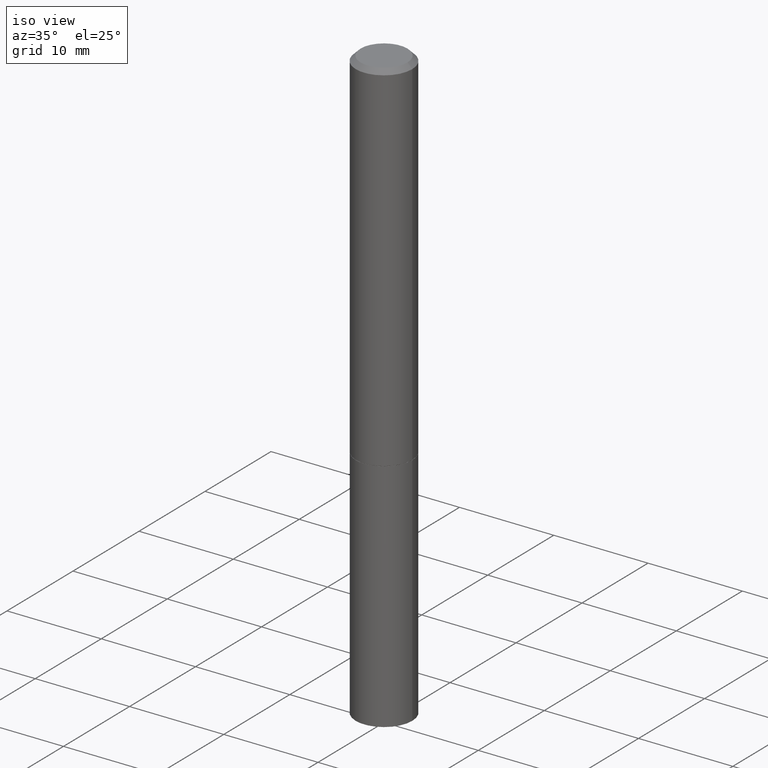
[diagram: clean part render]
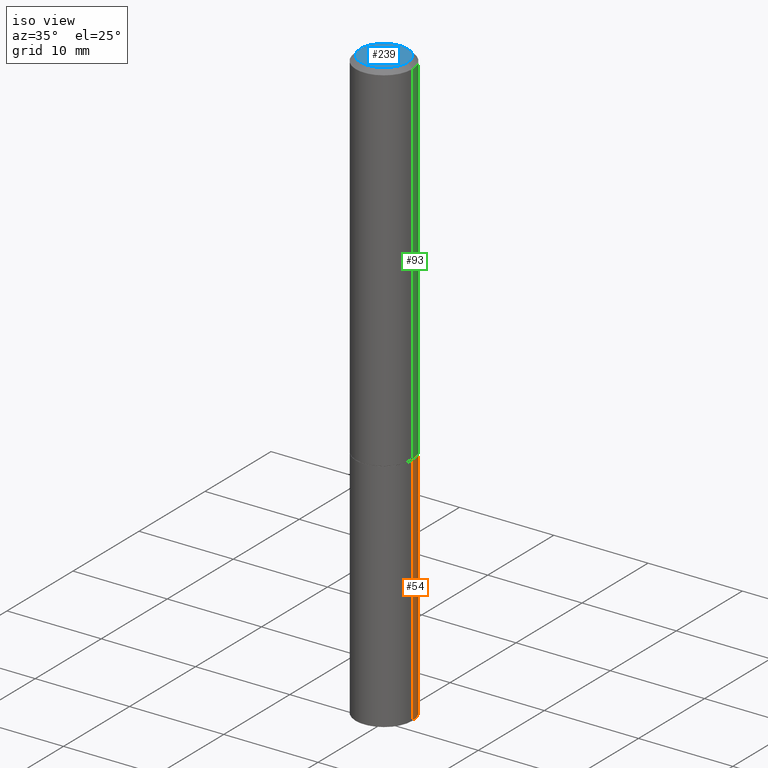
[diagram: same view with three faces highlighted in distinct colors, each labeled with its STEP entity id]
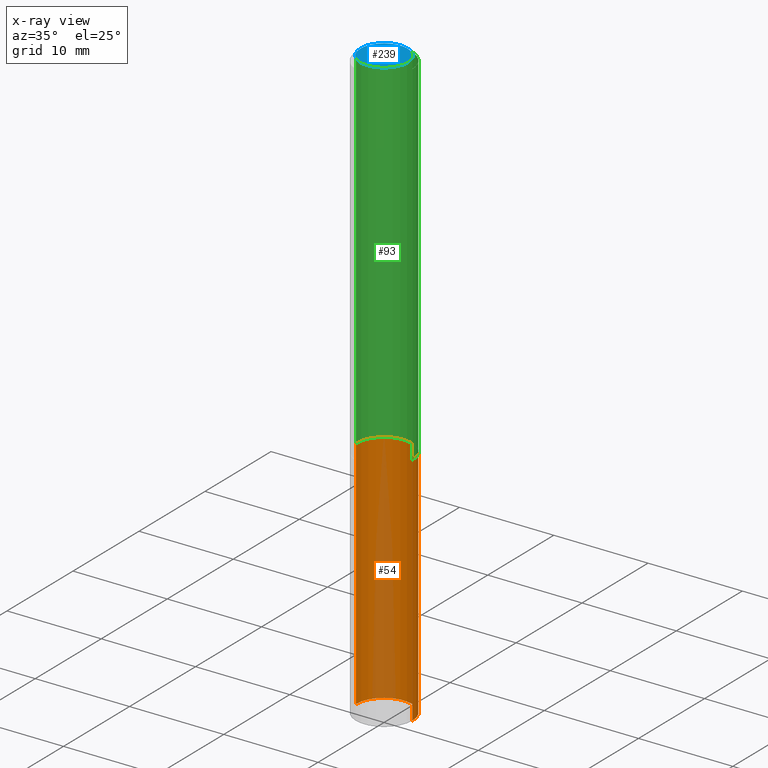
[diagram: x-ray of the same camera — body ghosted, the three highlighted faces saturated]
A machine part, iso view with three faces highlighted in distinct colors.
The next image is the same camera in x-ray (body ghosted, the three faces saturated) — at least one of them is partly hidden behind the body in this view.
Their STEP definitions:

[orange] entity #54 — the highlighted cylindrical surface (edge-blend (fillet) strip) has radius 2.9997 mm, axis along (-0, 0, 1).
#7 = CIRCLE ( 'NONE', #296, 0.1180999999999999966 ) ;
#11 = DIRECTION ( 'NONE',  ( -2.445468806185136597E-29, 3.491481338843145583E-15, 1.000000000000000000 ) ) ;
#16 = LINE ( 'NONE', #128, #46 ) ;
#24 = EDGE_CURVE ( 'NONE', #259, #223, #74, .T. ) ;
#46 = VECTOR ( 'NONE', #233, 39.37007874015748143 ) ;
#49 = DIRECTION ( 'NONE',  ( 1.000000000000000000, -6.982962677686266711E-15, 4.876176775795936353E-29 ) ) ;
#50 = CARTESIAN_POINT ( 'NONE',  ( -0.1180999999999999966, -6.102437652888322939E-15, -2.480300000000000171 ) ) ;
#52 = CARTESIAN_POINT ( 'NONE',  ( 0.1180999999999999966, -9.484609056967403598E-15, -2.480300000000000171 ) ) ;
#54 = ADVANCED_FACE ( 'NONE', ( #72 ), #152, .T. ) ;
#56 = CIRCLE ( 'NONE', #161, 0.1180999999999999966 ) ;
#68 = EDGE_LOOP ( 'NONE', ( #282, #92, #354, #114 ) ) ;
#72 = FACE_OUTER_BOUND ( 'NONE', #68, .T. ) ;
#74 = LINE ( 'NONE', #157, #78 ) ;
#78 = VECTOR ( 'NONE', #298, 39.37007874015748143 ) ;
#81 = DIRECTION ( 'NONE',  ( 1.000000000000000000, -6.982962677686273021E-15, 0.000000000000000000 ) ) ;
#92 = ORIENTED_EDGE ( 'NONE', *, *, #24, .T. ) ;
#103 = EDGE_CURVE ( 'NONE', #317, #223, #56, .T. ) ;
#114 = ORIENTED_EDGE ( 'NONE', *, *, #158, .F. ) ;
#128 = CARTESIAN_POINT ( 'NONE',  ( 0.1180999999999999966, -8.246878922347480654E-16, 5.758764772215000440E-30 ) ) ;
#132 = AXIS2_PLACEMENT_3D ( 'NONE', #262, #11, #49 ) ;
#152 = CYLINDRICAL_SURFACE ( 'NONE', #132, 0.1180999999999999966 ) ;
#157 = CARTESIAN_POINT ( 'NONE',  ( -0.1180999999999999966, 8.391509709326782957E-16, -5.809262341591043784E-30 ) ) ;
#158 = EDGE_CURVE ( 'NONE', #221, #317, #16, .T. ) ;
#161 = AXIS2_PLACEMENT_3D ( 'NONE', #180, #181, #294 ) ;
#180 = CARTESIAN_POINT ( 'NONE',  ( 3.658421334052965286E-29, -5.223256082909346937E-15, -1.496000000000000441 ) ) ;
#181 = DIRECTION ( 'NONE',  ( -2.445468806185136597E-29, 3.491481338843145583E-15, 1.000000000000000000 ) ) ;
#194 = EDGE_CURVE ( 'NONE', #221, #259, #7, .T. ) ;
#221 = VERTEX_POINT ( 'NONE', #52 ) ;
#223 = VERTEX_POINT ( 'NONE', #304 ) ;
#233 = DIRECTION ( 'NONE',  ( -2.445468806185136877E-29, 3.491481338843145188E-15, 1.000000000000000000 ) ) ;
#259 = VERTEX_POINT ( 'NONE', #50 ) ;
#262 = CARTESIAN_POINT ( 'NONE',  ( 0.000000000000000000, 0.000000000000000000, 0.000000000000000000 ) ) ;
#282 = ORIENTED_EDGE ( 'NONE', *, *, #194, .T. ) ;
#294 = DIRECTION ( 'NONE',  ( 1.000000000000000000, -6.982962677686265133E-15, 0.000000000000000000 ) ) ;
#296 = AXIS2_PLACEMENT_3D ( 'NONE', #336, #334, #81 ) ;
#298 = DIRECTION ( 'NONE',  ( -2.445468806185136877E-29, 3.491481338843145188E-15, 1.000000000000000000 ) ) ;
#303 = CARTESIAN_POINT ( 'NONE',  ( 0.1180999999999999966, -6.047943975144094411E-15, -1.496000000000000441 ) ) ;
#304 = CARTESIAN_POINT ( 'NONE',  ( -0.1180999999999999966, -6.102437652888322939E-15, -1.496000000000000441 ) ) ;
#317 = VERTEX_POINT ( 'NONE', #303 ) ;
#334 = DIRECTION ( 'NONE',  ( -2.445468806185136597E-29, 3.491481338843145583E-15, 1.000000000000000000 ) ) ;
#336 = CARTESIAN_POINT ( 'NONE',  ( 6.065496279980994755E-29, -8.659921164732655335E-15, -2.480300000000000171 ) ) ;
#354 = ORIENTED_EDGE ( 'NONE', *, *, #103, .F. ) ;

[blue] entity #239 — the highlighted planar face has unit normal (0, -0, -1).
#6 = ORIENTED_EDGE ( 'NONE', *, *, #171, .T. ) ;
#8 = CIRCLE ( 'NONE', #111, 0.09809999999999986786 ) ;
#9 = CARTESIAN_POINT ( 'NONE',  ( -0.09809999999999986786, 7.199434520694528223E-16, -1.707404996040655701E-17 ) ) ;
#21 = FACE_OUTER_BOUND ( 'NONE', #88, .T. ) ;
#22 = DIRECTION ( 'NONE',  ( -2.445468806185136597E-29, 3.491481338843145583E-15, 1.000000000000000000 ) ) ;
#28 = VERTEX_POINT ( 'NONE', #327 ) ;
#30 = AXIS2_PLACEMENT_3D ( 'NONE', #151, #210, #323 ) ;
#88 = EDGE_LOOP ( 'NONE', ( #6, #313 ) ) ;
#89 = CIRCLE ( 'NONE', #30, 0.09809999999999986786 ) ;
#111 = AXIS2_PLACEMENT_3D ( 'NONE', #271, #22, #137 ) ;
#135 = PLANE ( 'NONE',  #319 ) ;
#137 = DIRECTION ( 'NONE',  ( 1.000000000000000000, -6.982962677686265922E-15, 4.875229006325904019E-29 ) ) ;
#151 = CARTESIAN_POINT ( 'NONE',  ( 4.175405657340879278E-46, -5.961372681521788801E-32, -1.707404996040164512E-17 ) ) ;
#171 = EDGE_CURVE ( 'NONE', #365, #28, #89, .T. ) ;
#186 = DIRECTION ( 'NONE',  ( -1.000000000000000000, 6.982962677686265922E-15, -4.876176775795935793E-29 ) ) ;
#210 = DIRECTION ( 'NONE',  ( -2.445468806185136597E-29, 3.491481338843145583E-15, 1.000000000000000000 ) ) ;
#213 = CARTESIAN_POINT ( 'NONE',  ( 6.850286386810217648E-16, 0.09809999999999986786, -3.510513443207129191E-16 ) ) ;
#239 = ADVANCED_FACE ( 'NONE', ( #21 ), #135, .F. ) ;
#271 = CARTESIAN_POINT ( 'NONE',  ( 4.175405657340879278E-46, -5.961372681521788801E-32, -1.707404996040164512E-17 ) ) ;
#313 = ORIENTED_EDGE ( 'NONE', *, *, #326, .T. ) ;
#319 = AXIS2_PLACEMENT_3D ( 'NONE', #213, #357, #186 ) ;
#323 = DIRECTION ( 'NONE',  ( 1.000000000000000000, -6.982962677686265922E-15, 4.875229006325904019E-29 ) ) ;
#326 = EDGE_CURVE ( 'NONE', #28, #365, #8, .T. ) ;
#327 = CARTESIAN_POINT ( 'NONE',  ( 0.09809999999999986786, -7.765346469475328709E-16, -1.707404996039653601E-17 ) ) ;
#357 = DIRECTION ( 'NONE',  ( 2.438088387897960049E-29, -3.491481338843145188E-15, -1.000000000000000000 ) ) ;
#365 = VERTEX_POINT ( 'NONE', #9 ) ;

[green] entity #93 — the highlighted cylindrical surface (edge-blend (fillet) strip) has radius 2.9997 mm, axis along (-0, 0, 1).
#2 = EDGE_LOOP ( 'NONE', ( #226, #62, #176, #291 ) ) ;
#17 = FACE_OUTER_BOUND ( 'NONE', #2, .T. ) ;
#19 = DIRECTION ( 'NONE',  ( -2.445468806185136597E-29, 3.491481338843145583E-15, 1.000000000000000000 ) ) ;
#34 = VERTEX_POINT ( 'NONE', #350 ) ;
#55 = DIRECTION ( 'NONE',  ( 1.000000000000000000, -6.982962677686265133E-15, 0.000000000000000000 ) ) ;
#62 = ORIENTED_EDGE ( 'NONE', *, *, #136, .T. ) ;
#75 = CARTESIAN_POINT ( 'NONE',  ( 4.890937612370276662E-31, -6.982962677686296539E-17, -0.02000000000000001776 ) ) ;
#93 = ADVANCED_FACE ( 'NONE', ( #17 ), #182, .T. ) ;
#95 = CARTESIAN_POINT ( 'NONE',  ( -0.1180999999999998995, 8.391509709326776054E-16, -5.809262341591038879E-30 ) ) ;
#97 = DIRECTION ( 'NONE',  ( 1.000000000000000000, -6.982962677686266711E-15, 4.876176775795935232E-29 ) ) ;
#100 = DIRECTION ( 'NONE',  ( 1.000000000000000000, -6.982962677686266711E-15, 0.000000000000000000 ) ) ;
#107 = DIRECTION ( 'NONE',  ( -2.445468806185136877E-29, 3.491481338843145188E-15, 1.000000000000000000 ) ) ;
#129 = LINE ( 'NONE', #95, #215 ) ;
#136 = EDGE_CURVE ( 'NONE', #178, #340, #129, .T. ) ;
#138 = CIRCLE ( 'NONE', #184, 0.1180999999999999966 ) ;
#164 = EDGE_CURVE ( 'NONE', #321, #340, #168, .T. ) ;
#165 = CARTESIAN_POINT ( 'NONE',  ( 0.1180999999999998162, -8.800544403136795556E-16, -0.02000000000000001776 ) ) ;
#168 = CIRCLE ( 'NONE', #242, 0.1180999999999998162 ) ;
#176 = ORIENTED_EDGE ( 'NONE', *, *, #164, .F. ) ;
#178 = VERTEX_POINT ( 'NONE', #212 ) ;
#182 = CYLINDRICAL_SURFACE ( 'NONE', #237, 0.1180999999999998995 ) ;
#184 = AXIS2_PLACEMENT_3D ( 'NONE', #245, #19, #55 ) ;
#187 = EDGE_CURVE ( 'NONE', #34, #321, #241, .T. ) ;
#197 = EDGE_CURVE ( 'NONE', #34, #178, #138, .T. ) ;
#212 = CARTESIAN_POINT ( 'NONE',  ( -0.1180999999999999966, -1.805646143241002656E-15, -1.495000000000000329 ) ) ;
#215 = VECTOR ( 'NONE', #353, 39.37007874015748143 ) ;
#216 = CARTESIAN_POINT ( 'NONE',  ( 0.1180999999999998995, -8.246878922347473751E-16, 5.758764772214994835E-30 ) ) ;
#226 = ORIENTED_EDGE ( 'NONE', *, *, #197, .T. ) ;
#232 = DIRECTION ( 'NONE',  ( -2.445468806185136597E-29, 3.491481338843145583E-15, 1.000000000000000000 ) ) ;
#237 = AXIS2_PLACEMENT_3D ( 'NONE', #295, #232, #97 ) ;
#241 = LINE ( 'NONE', #216, #332 ) ;
#242 = AXIS2_PLACEMENT_3D ( 'NONE', #75, #265, #100 ) ;
#245 = CARTESIAN_POINT ( 'NONE',  ( 3.655975865246779683E-29, -5.219764601570503930E-15, -1.495000000000000329 ) ) ;
#265 = DIRECTION ( 'NONE',  ( -2.445468806185136597E-29, 3.491481338843145583E-15, 1.000000000000000000 ) ) ;
#291 = ORIENTED_EDGE ( 'NONE', *, *, #187, .F. ) ;
#295 = CARTESIAN_POINT ( 'NONE',  ( 0.000000000000000000, 0.000000000000000000, 0.000000000000000000 ) ) ;
#312 = CARTESIAN_POINT ( 'NONE',  ( -0.1180999999999998162, 7.548582654578837811E-16, -0.02000000000000001776 ) ) ;
#321 = VERTEX_POINT ( 'NONE', #165 ) ;
#332 = VECTOR ( 'NONE', #107, 39.37007874015748143 ) ;
#340 = VERTEX_POINT ( 'NONE', #312 ) ;
#350 = CARTESIAN_POINT ( 'NONE',  ( 0.1180999999999999966, -6.044452493805252192E-15, -1.495000000000000329 ) ) ;
#353 = DIRECTION ( 'NONE',  ( -2.445468806185136877E-29, 3.491481338843145188E-15, 1.000000000000000000 ) ) ;